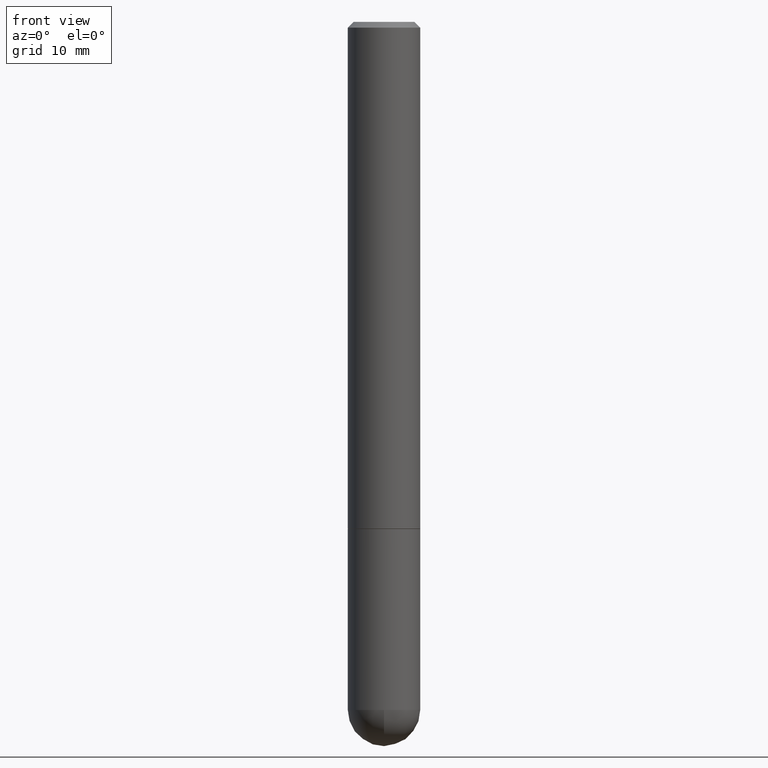
[diagram: clean part render]
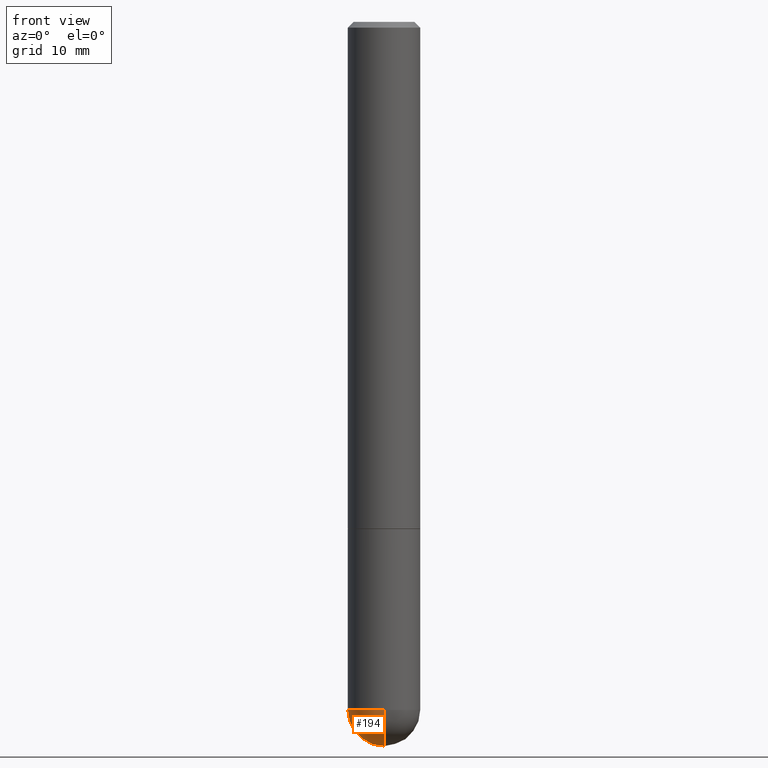
[diagram: same view with one face highlighted and labeled with its STEP entity id]
A machine part, front view. The second image highlights one B-rep face of the part: STEP entity #194.
In plain terms, the highlighted spherical surface has radius 3.175 mm.
Its self-contained STEP definition (entity closure, byte-faithful):
#16 = CARTESIAN_POINT ( 'NONE',  ( 8.728703347108403340E-16, 0.1249999999999915623, -2.375000000000000888 ) ) ;
#17 = CIRCLE ( 'NONE', #288, 0.1250000000000001943 ) ;
#23 = DIRECTION ( 'NONE',  ( -1.000000000000000000, 7.105427357601001070E-15, -4.926315508542082329E-29 ) ) ;
#30 = EDGE_LOOP ( 'NONE', ( #78, #377, #275, #311 ) ) ;
#36 = VERTEX_POINT ( 'NONE', #77 ) ;
#43 = DIRECTION ( 'NONE',  ( 1.000000000000000000, -6.982962677686270655E-15, 0.000000000000000000 ) ) ;
#69 = DIRECTION ( 'NONE',  ( 1.000000000000000000, -6.982962677686270655E-15, 0.000000000000000000 ) ) ;
#77 = CARTESIAN_POINT ( 'NONE',  ( -8.881784197000694204E-16, -0.1250000000000086320, -2.374999999999999556 ) ) ;
#78 = ORIENTED_EDGE ( 'NONE', *, *, #186, .F. ) ;
#89 = VERTEX_POINT ( 'NONE', #16 ) ;
#95 = EDGE_CURVE ( 'NONE', #347, #36, #17, .T. ) ;
#120 = CARTESIAN_POINT ( 'NONE',  ( 5.476868636775814291E-29, -8.766450547892521992E-15, -2.375000000000000000 ) ) ;
#131 = DIRECTION ( 'NONE',  ( -2.445468806185136597E-29, 3.491481338843145583E-15, 1.000000000000000000 ) ) ;
#135 = DIRECTION ( 'NONE',  ( 6.982962677686265133E-15, 1.000000000000000000, 0.000000000000000000 ) ) ;
#136 = AXIS2_PLACEMENT_3D ( 'NONE', #390, #218, #135 ) ;
#161 = DIRECTION ( 'NONE',  ( 6.982962677686265922E-15, 1.000000000000000000, -4.370956789862814839E-15 ) ) ;
#163 = CARTESIAN_POINT ( 'NONE',  ( 5.476868636775814291E-29, -8.766450547892521992E-15, -2.375000000000000000 ) ) ;
#172 = AXIS2_PLACEMENT_3D ( 'NONE', #246, #173, #69 ) ;
#173 = DIRECTION ( 'NONE',  ( -2.445468806185136597E-29, 3.491481338843145583E-15, 1.000000000000000000 ) ) ;
#185 = FACE_OUTER_BOUND ( 'NONE', #30, .T. ) ;
#186 = EDGE_CURVE ( 'NONE', #347, #89, #402, .T. ) ;
#194 = ADVANCED_FACE ( 'NONE', ( #185 ), #273, .T. ) ;
#205 = CIRCLE ( 'NONE', #172, 0.1250000000000000000 ) ;
#218 = DIRECTION ( 'NONE',  ( 1.000000000000000000, -6.982962677686265922E-15, 4.883557194083112340E-29 ) ) ;
#233 = AXIS2_PLACEMENT_3D ( 'NONE', #120, #318, #161 ) ;
#246 = CARTESIAN_POINT ( 'NONE',  ( 5.807988414689700538E-29, -8.292268179752471696E-15, -2.375000000000000000 ) ) ;
#273 = SPHERICAL_SURFACE ( 'NONE', #233, 0.1250000000000001943 ) ;
#275 = ORIENTED_EDGE ( 'NONE', *, *, #287, .F. ) ;
#276 = AXIS2_PLACEMENT_3D ( 'NONE', #393, #131, #43 ) ;
#287 = EDGE_CURVE ( 'NONE', #340, #36, #205, .T. ) ;
#288 = AXIS2_PLACEMENT_3D ( 'NONE', #163, #23, #360 ) ;
#297 = CIRCLE ( 'NONE', #276, 0.1250000000000000000 ) ;
#306 = CARTESIAN_POINT ( 'NONE',  ( 5.787897026856327965E-29, -9.195231672753244292E-15, -2.500000000000000444 ) ) ;
#311 = ORIENTED_EDGE ( 'NONE', *, *, #398, .F. ) ;
#318 = DIRECTION ( 'NONE',  ( -1.000000000000000000, 6.982962677686265922E-15, -4.883557194083112901E-29 ) ) ;
#340 = VERTEX_POINT ( 'NONE', #405 ) ;
#347 = VERTEX_POINT ( 'NONE', #306 ) ;
#360 = DIRECTION ( 'NONE',  ( -7.105427357601000281E-15, -1.000000000000000000, 0.000000000000000000 ) ) ;
#377 = ORIENTED_EDGE ( 'NONE', *, *, #95, .T. ) ;
#390 = CARTESIAN_POINT ( 'NONE',  ( 5.476868636775814291E-29, -8.766450547892521992E-15, -2.375000000000000000 ) ) ;
#393 = CARTESIAN_POINT ( 'NONE',  ( 5.807988414689700538E-29, -8.292268179752471696E-15, -2.375000000000000000 ) ) ;
#398 = EDGE_CURVE ( 'NONE', #89, #340, #297, .T. ) ;
#402 = CIRCLE ( 'NONE', #136, 0.1250000000000001943 ) ;
#405 = CARTESIAN_POINT ( 'NONE',  ( -0.1250000000000000000, -6.313001841663864134E-15, -2.375000000000000000 ) ) ;